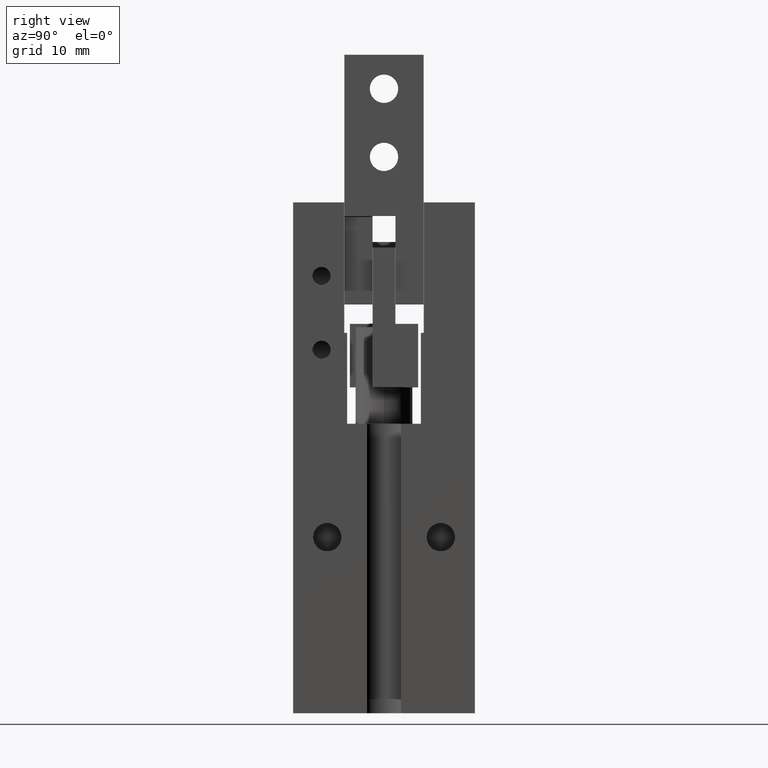
[diagram: clean part render]
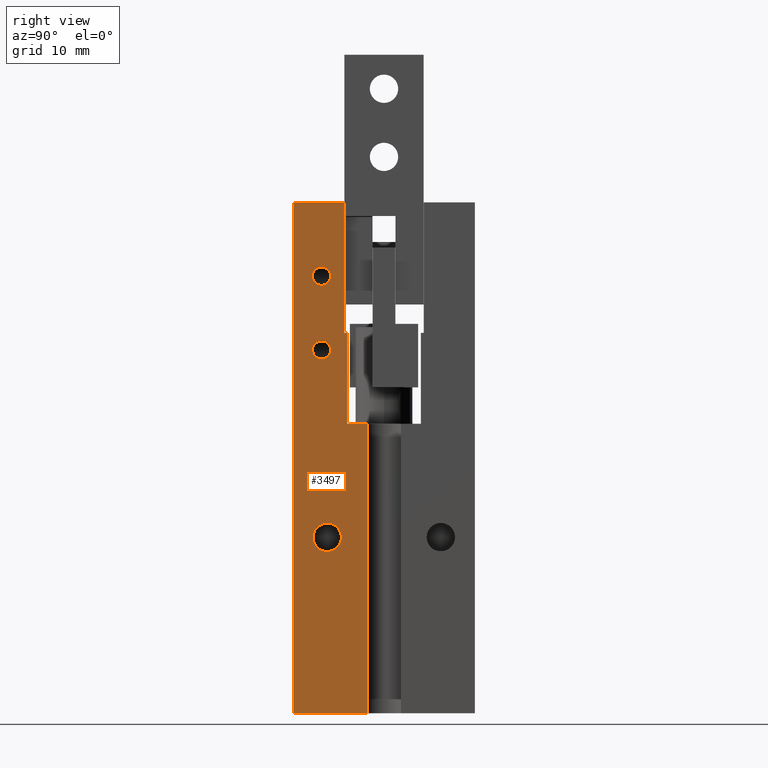
[diagram: same view with one face highlighted and labeled with its STEP entity id]
A machine part, right view. The second image highlights one B-rep face of the part: STEP entity #3497.
In plain terms, the highlighted planar face has unit normal (1, -0, 0).
Its self-contained STEP definition (entity closure, byte-faithful):
#2146=CARTESIAN_POINT('',(11.5,-1.5,7.04148653447867E-016));
#2147=VERTEX_POINT('Vertex104',#2146);
#2154=CARTESIAN_POINT('',(11.5000000038333,-8.00000000000004,
4.77510306717463E-016));
#2155=VERTEX_POINT('Vertex105',#2154);
#2156=CARTESIAN_POINT('',(11.5000000019167,-4.75000000000002,
5.90829480082665E-016));
#2157=DIRECTION('',(5.89739812539844E-010,-1.,-3.48674379585235E-017));
#2158=VECTOR('',#2157,1.);
#2159=LINE('nurbsCrv124',#2156,#2158);
#2160=EDGE_CURVE('Edge124',#2147,#2155,#2159,.T.);
#2311=CARTESIAN_POINT('',(11.5,-6.30000000000045,38.5));
#2312=VERTEX_POINT('Vertex113',#2311);
#2313=CARTESIAN_POINT('',(11.5,-4.70000000000045,38.5));
#2314=VERTEX_POINT('Vertex258',#2313);
#2315=CARTESIAN_POINT('',(11.5,-5.50000000000045,38.5));
#2316=DIRECTION('',(-1.,2.22044604925031E-015,0.));
#2317=DIRECTION('',(0.,-1.,0.));
#2318=AXIS2_PLACEMENT_3D('',#2315,#2316,#2317);
#2319=CIRCLE('nurbsCrv751',#2318,0.799999999999997);
#2320=EDGE_CURVE('Edge391',#2312,#2314,#2319,.T.);
#2322=CARTESIAN_POINT('',(11.5,-5.50000000000045,38.5));
#2323=DIRECTION('',(-1.,4.44089209850063E-015,-2.22044604925032E-015));
#2324=DIRECTION('',(4.44089209850064E-015,1.,0.));
#2325=AXIS2_PLACEMENT_3D('',#2322,#2323,#2324);
#2326=CIRCLE('nurbsCrv752',#2325,0.799999999999999);
#2327=EDGE_CURVE('Edge392',#2314,#2312,#2326,.T.);
#2416=CARTESIAN_POINT('',(11.5,-6.30000000000045,32.0000000000001));
#2417=VERTEX_POINT('Vertex116',#2416);
#2418=CARTESIAN_POINT('',(11.5,-4.70000000000045,32.0000000000001));
#2419=VERTEX_POINT('Vertex261',#2418);
#2420=CARTESIAN_POINT('',(11.5,-5.50000000000045,32.0000000000001));
#2421=DIRECTION('',(-1.,2.22044604925031E-015,-2.22044604925032E-015));
#2422=DIRECTION('',(0.,-1.,0.));
#2423=AXIS2_PLACEMENT_3D('',#2420,#2421,#2422);
#2424=CIRCLE('nurbsCrv773',#2423,0.799999999999999);
#2425=EDGE_CURVE('Edge399',#2417,#2419,#2424,.T.);
#2427=CARTESIAN_POINT('',(11.5,-5.50000000000045,32.0000000000001));
#2428=DIRECTION('',(-1.,-2.22044604925031E-015,2.22044604925031E-015));
#2429=DIRECTION('',(0.,1.,0.));
#2430=AXIS2_PLACEMENT_3D('',#2427,#2428,#2429);
#2431=CIRCLE('nurbsCrv774',#2430,0.800000000000002);
#2432=EDGE_CURVE('Edge400',#2419,#2417,#2431,.T.);
#2497=CARTESIAN_POINT('',(11.5,-3.50000000000004,33.5));
#2498=VERTEX_POINT('Vertex119',#2497);
#2515=CARTESIAN_POINT('',(11.5,-3.50000000000004,45.));
#2516=VERTEX_POINT('Vertex121',#2515);
#2523=CARTESIAN_POINT('',(11.5,-3.50000000000004,39.25));
#2524=DIRECTION('',(0.,-3.86164530304402E-017,1.));
#2525=VECTOR('',#2524,1.);
#2526=LINE('nurbsCrv141',#2523,#2525);
#2527=EDGE_CURVE('Edge141',#2498,#2516,#2526,.T.);
#2698=CARTESIAN_POINT('',(11.5,-8.00000000000004,45.));
#2699=VERTEX_POINT('Vertex132',#2698);
#2715=CARTESIAN_POINT('',(11.5000000019166,-8.00000000000004,22.5));
#2716=DIRECTION('',(-8.51852711826319E-011,-7.89491928622334E-017,1.));
#2717=VECTOR('',#2716,1.);
#2718=LINE('nurbsCrv154',#2715,#2717);
#2719=EDGE_CURVE('Edge154',#2155,#2699,#2718,.T.);
#3004=CARTESIAN_POINT('',(11.5,-6.25000000000045,15.5));
#3005=VERTEX_POINT('Vertex142',#3004);
#3006=CARTESIAN_POINT('',(11.5,-3.75000000000045,15.5));
#3007=VERTEX_POINT('Vertex275',#3006);
#3008=CARTESIAN_POINT('',(11.5,-5.00000000000045,15.5));
#3009=DIRECTION('',(-1.,0.,-1.4210854715202E-015));
#3010=DIRECTION('',(2.8421709430404E-015,-1.,0.));
#3011=AXIS2_PLACEMENT_3D('',#3008,#3009,#3010);
#3012=CIRCLE('nurbsCrv926',#3011,1.25);
#3013=EDGE_CURVE('Edge434',#3005,#3007,#3012,.T.);
#3015=CARTESIAN_POINT('',(11.5,-5.00000000000045,15.5));
#3016=DIRECTION('',(-1.,0.,0.));
#3017=DIRECTION('',(0.,1.,0.));
#3018=AXIS2_PLACEMENT_3D('',#3015,#3016,#3017);
#3019=CIRCLE('nurbsCrv927',#3018,1.25);
#3020=EDGE_CURVE('Edge435',#3007,#3005,#3019,.T.);
#3203=CARTESIAN_POINT('',(11.5,-5.75000000000004,45.));
#3204=DIRECTION('',(3.15796771448933E-015,1.,0.));
#3205=VECTOR('',#3204,1.);
#3206=LINE('nurbsCrv175',#3203,#3205);
#3207=EDGE_CURVE('Edge175',#2699,#2516,#3206,.T.);
#3444=CARTESIAN_POINT('',(11.5,-1.5,25.5));
#3445=VERTEX_POINT('Vertex157',#3444);
#3446=CARTESIAN_POINT('',(11.5,-1.5,12.75));
#3447=DIRECTION('',(-2.78644210102E-016,0.,1.));
#3448=VECTOR('',#3447,1.);
#3449=LINE('nurbsCrv188',#3446,#3448);
#3450=EDGE_CURVE('Edge188',#2147,#3445,#3449,.T.);
#3451=ORIENTED_EDGE('Edgeuse311',*,*,#3450,.T.);
#3452=CARTESIAN_POINT('',(11.5,-3.25000000000004,25.5));
#3453=VERTEX_POINT('Vertex158',#3452);
#3454=CARTESIAN_POINT('',(11.5,-2.37500000000002,25.5));
#3455=DIRECTION('',(-3.04518315325751E-015,-1.,0.));
#3456=VECTOR('',#3455,1.);
#3457=LINE('nurbsCrv189',#3454,#3456);
#3458=EDGE_CURVE('Edge189',#3445,#3453,#3457,.T.);
#3459=ORIENTED_EDGE('Edgeuse312',*,*,#3458,.T.);
#3460=CARTESIAN_POINT('',(11.5,-3.25000000000004,33.5));
#3461=VERTEX_POINT('Vertex159',#3460);
#3462=CARTESIAN_POINT('',(11.5,-3.25000000000004,29.5));
#3463=DIRECTION('',(-2.22044604925031E-016,-1.11022302462516E-016,1.));
#3464=VECTOR('',#3463,1.);
#3465=LINE('nurbsCrv190',#3462,#3464);
#3466=EDGE_CURVE('Edge190',#3453,#3461,#3465,.T.);
#3467=ORIENTED_EDGE('Edgeuse313',*,*,#3466,.T.);
#3468=CARTESIAN_POINT('',(11.5,-3.37500000000004,33.5));
#3469=DIRECTION('',(0.,1.,0.));
#3470=VECTOR('',#3469,1.);
#3471=LINE('nurbsCrv191',#3468,#3470);
#3472=EDGE_CURVE('Edge191',#2498,#3461,#3471,.T.);
#3473=ORIENTED_EDGE('Edgeuse314',*,*,#3472,.F.);
#3474=ORIENTED_EDGE('Edgeuse315',*,*,#2527,.T.);
#3475=ORIENTED_EDGE('Edgeuse316',*,*,#3207,.F.);
#3476=ORIENTED_EDGE('Edgeuse317',*,*,#2719,.F.);
#3477=ORIENTED_EDGE('Edgeuse318',*,*,#2160,.F.);
#3478=EDGE_LOOP('',(#3451,#3459,#3467,#3473,#3474,#3475,#3476,#3477));
#3479=FACE_OUTER_BOUND('',#3478,.T.);
#3480=ORIENTED_EDGE('Edgeuse782',*,*,#2320,.T.);
#3481=ORIENTED_EDGE('Edgeuse784',*,*,#2327,.T.);
#3482=EDGE_LOOP('',(#3480,#3481));
#3483=FACE_BOUND('',#3482,.T.);
#3484=ORIENTED_EDGE('Edgeuse798',*,*,#2425,.T.);
#3485=ORIENTED_EDGE('Edgeuse800',*,*,#2432,.T.);
#3486=EDGE_LOOP('',(#3484,#3485));
#3487=FACE_BOUND('',#3486,.T.);
#3488=ORIENTED_EDGE('Edgeuse868',*,*,#3013,.T.);
#3489=ORIENTED_EDGE('Edgeuse870',*,*,#3020,.T.);
#3490=EDGE_LOOP('',(#3488,#3489));
#3491=FACE_BOUND('',#3490,.T.);
#3492=CARTESIAN_POINT('',(11.5,-4.75000000000002,22.5));
#3493=DIRECTION('',(1.,-3.22973970800036E-015,7.17719935111315E-017));
#3494=DIRECTION('',(-3.22973970800036E-015,-1.,2.98129819200034E-015));
#3495=AXIS2_PLACEMENT_3D('',#3492,#3493,#3494);
#3496=PLANE('nurbsSrf76',#3495);
#3497=ADVANCED_FACE('Face76',(#3479,#3483,#3487,#3491),#3496,.T.);